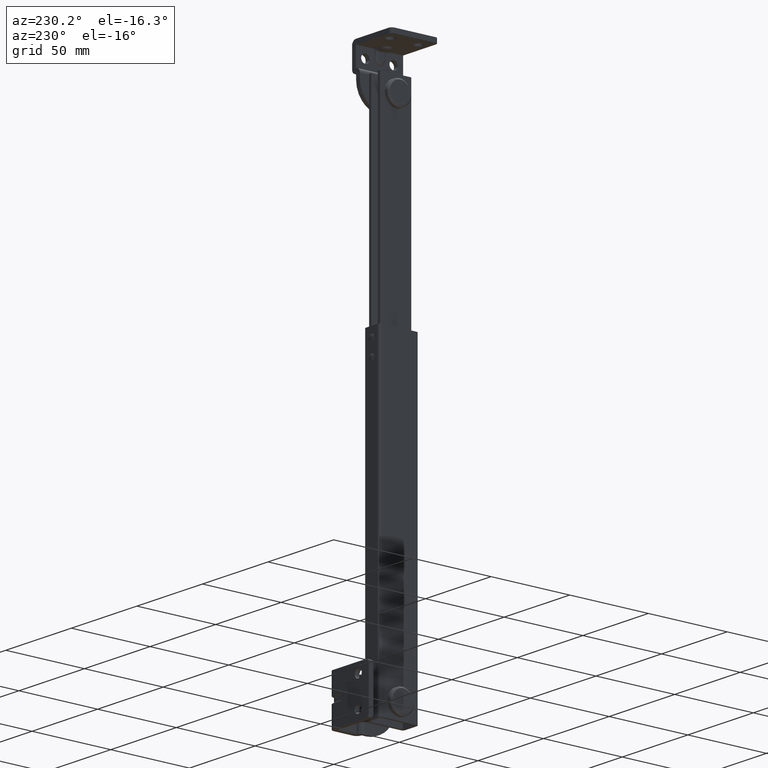
[diagram: clean part render]
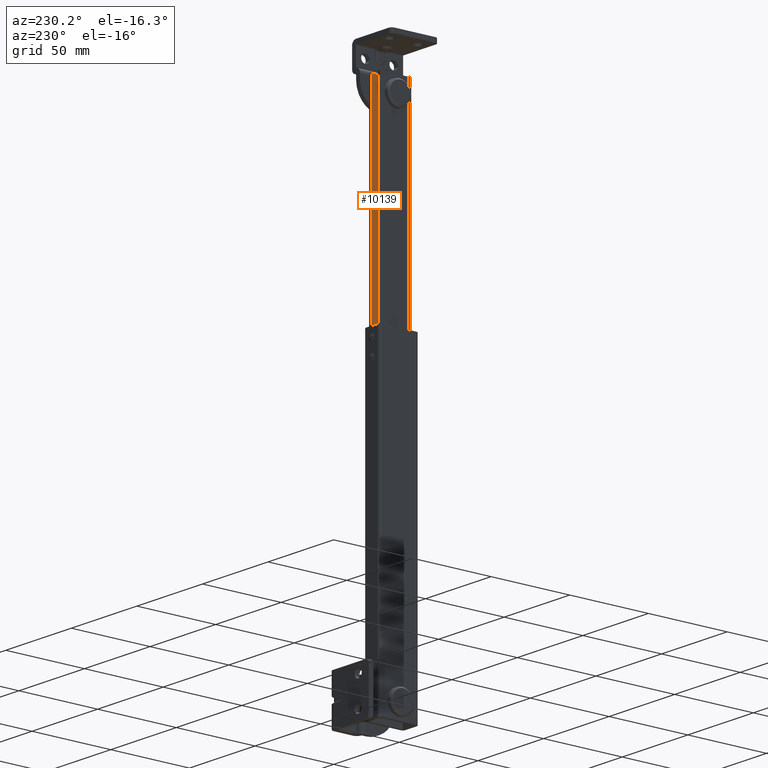
[diagram: same view with one face highlighted and labeled with its STEP entity id]
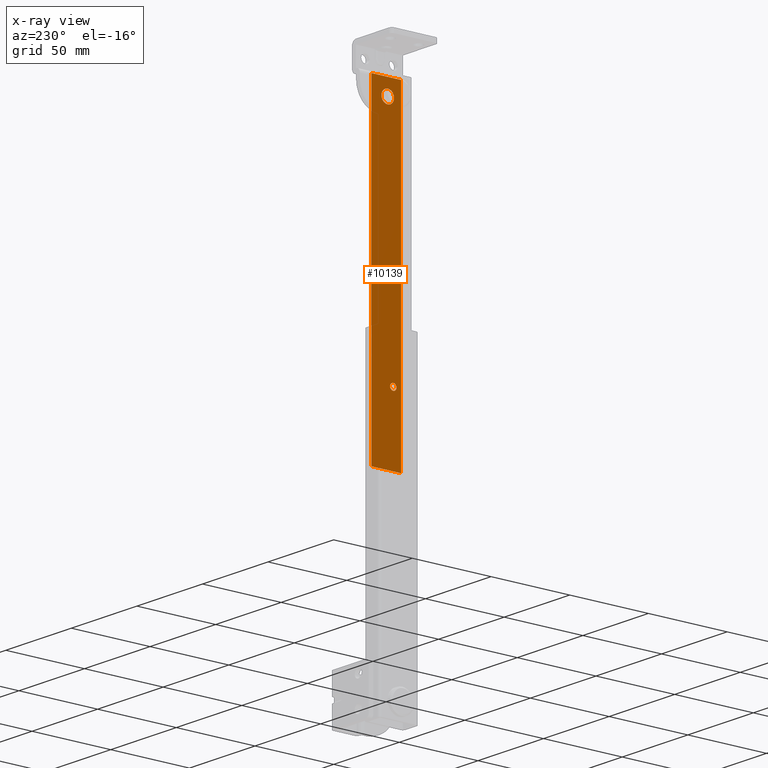
[diagram: x-ray of the same camera — body ghosted, the highlighted face saturated]
A machine part, auxiliary view. The second image highlights one B-rep face of the part: STEP entity #10139.
The next image is the same camera in x-ray: the body ghosted, the highlighted face saturated — about 0% of this face is hidden behind the body in this view.
In plain terms, the highlighted face is a freeform B-spline surface patch.
Its self-contained STEP definition (entity closure, byte-faithful):
#8770=CARTESIAN_POINT('',(8.799994000000000,-5.490452368084956,163.236068474418490));
#8771=VERTEX_POINT('',#8770);
#8772=CARTESIAN_POINT('',(8.799994000000000,-3.504433315964420,161.0));
#8773=VERTEX_POINT('',#8772);
#8774=CARTESIAN_POINT('',(8.799994000000000,-5.490452368084956,163.236068474418430));
#8775=CARTESIAN_POINT('',(8.799994000000000,-5.504433315964420,163.118448244462740));
#8776=CARTESIAN_POINT('',(8.799994000000000,-5.504433315964420,163.0));
#8777=CARTESIAN_POINT('',(8.799994000000000,-5.504433315964420,161.000000000000060));
#8778=CARTESIAN_POINT('',(8.799994000000000,-3.504433315964420,161.0));
#8786=(BOUNDED_CURVE()B_SPLINE_CURVE(2,(#8774,#8775,#8776,#8777,#8778),.UNSPECIFIED.,.F.,.U.)B_SPLINE_CURVE_WITH_KNOTS((3,2,3),(0.229562472646823,0.250000000000000,0.500000000000000),.UNSPECIFIED.)CURVE()GEOMETRIC_REPRESENTATION_ITEM()RATIONAL_B_SPLINE_CURVE((0.956026752484961,0.976055947315760,1.0,0.707106781186548,1.0))REPRESENTATION_ITEM(''));
#8787=EDGE_CURVE('',#8771,#8773,#8786,.T.);
#8828=CARTESIAN_POINT('',(8.799994000000002,-1.508163719403995,162.877902916298210));
#8829=VERTEX_POINT('',#8828);
#8835=CARTESIAN_POINT('',(8.799994000000000,-3.504433315964420,161.0));
#8836=CARTESIAN_POINT('',(8.799994000000002,-1.623021190900422,161.000000000000060));
#8837=CARTESIAN_POINT('',(8.799994000000002,-1.508163719403994,162.877902916298240));
#8845=(BOUNDED_CURVE()B_SPLINE_CURVE(2,(#8835,#8836,#8837),.UNSPECIFIED.,.F.,.U.)B_SPLINE_CURVE_WITH_KNOTS((3,3),(0.500000000000000,0.739332961441230),.UNSPECIFIED.)CURVE()GEOMETRIC_REPRESENTATION_ITEM()RATIONAL_B_SPLINE_CURVE((1.0,0.719603994221289,0.976072039957067))REPRESENTATION_ITEM(''));
#8846=EDGE_CURVE('',#8773,#8829,#8845,.T.);
#8869=CARTESIAN_POINT('',(8.799994000000000,-3.504433315964420,165.0));
#8870=VERTEX_POINT('',#8869);
#8871=CARTESIAN_POINT('',(8.799994000000000,-3.504433315964420,165.0));
#8872=CARTESIAN_POINT('',(8.799994000000002,-5.280782358670918,165.0));
#8873=CARTESIAN_POINT('',(8.799994000000000,-5.490452368084956,163.236068474418430));
#8881=(BOUNDED_CURVE()B_SPLINE_CURVE(2,(#8871,#8872,#8873),.UNSPECIFIED.,.F.,.U.)B_SPLINE_CURVE_WITH_KNOTS((3,3),(0.0,0.229562472646823),.UNSPECIFIED.)CURVE()GEOMETRIC_REPRESENTATION_ITEM()RATIONAL_B_SPLINE_CURVE((1.0,0.731050833870787,0.956026752484961))REPRESENTATION_ITEM(''));
#8882=EDGE_CURVE('',#8870,#8771,#8881,.T.);
#8884=CARTESIAN_POINT('',(8.799994000000002,-1.508163719403995,162.877902916298240));
#8885=CARTESIAN_POINT('',(8.799994000000002,-1.504433315964420,162.938894468757750));
#8886=CARTESIAN_POINT('',(8.799994000000000,-1.504433315964420,163.0));
#8887=CARTESIAN_POINT('',(8.799994000000000,-1.504433315964420,165.000000000000090));
#8888=CARTESIAN_POINT('',(8.799994000000000,-3.504433315964420,165.0));
#8896=(BOUNDED_CURVE()B_SPLINE_CURVE(2,(#8884,#8885,#8886,#8887,#8888),.UNSPECIFIED.,.F.,.U.)B_SPLINE_CURVE_WITH_KNOTS((3,2,3),(0.739332961441229,0.750000000000000,1.0),.UNSPECIFIED.)CURVE()GEOMETRIC_REPRESENTATION_ITEM()RATIONAL_B_SPLINE_CURVE((0.976072039957066,0.987502786965258,1.0,0.707106781186548,1.0))REPRESENTATION_ITEM(''));
#8897=EDGE_CURVE('',#8829,#8870,#8896,.T.);
#9142=CARTESIAN_POINT('',(8.799994000000002,-3.972038105131492,310.472136941345920));
#9143=VERTEX_POINT('',#9142);
#9144=CARTESIAN_POINT('',(8.799994000000000,0.0,306.0));
#9145=VERTEX_POINT('',#9144);
#9146=CARTESIAN_POINT('',(8.799994000000002,-3.972038105131492,310.472136941345920));
#9147=CARTESIAN_POINT('',(8.799994000000000,-4.0,310.236896481355190));
#9148=CARTESIAN_POINT('',(8.799994000000000,-4.0,310.0));
#9149=CARTESIAN_POINT('',(8.799994000000000,-4.000000000000000,306.000000000000060));
#9150=CARTESIAN_POINT('',(8.799994000000000,0.0,306.0));
#9158=(BOUNDED_CURVE()B_SPLINE_CURVE(2,(#9146,#9147,#9148,#9149,#9150),.UNSPECIFIED.,.F.,.U.)B_SPLINE_CURVE_WITH_KNOTS((3,2,3),(0.229562473284282,0.250000000000000,0.500000000000000),.UNSPECIFIED.)CURVE()GEOMETRIC_REPRESENTATION_ITEM()RATIONAL_B_SPLINE_CURVE((0.956026753734405,0.976055948062589,1.0,0.707106781186548,1.0))REPRESENTATION_ITEM(''));
#9159=EDGE_CURVE('',#9143,#9145,#9158,.T.);
#9200=CARTESIAN_POINT('',(8.799994000000000,3.992539193625170,309.755805840842070));
#9201=VERTEX_POINT('',#9200);
#9207=CARTESIAN_POINT('',(8.799994000000000,0.0,306.0));
#9208=CARTESIAN_POINT('',(8.799994000000000,3.762824265699311,305.999999999999940));
#9209=CARTESIAN_POINT('',(8.799994000000000,3.992539193625170,309.755805840842130));
#9217=(BOUNDED_CURVE()B_SPLINE_CURVE(2,(#9207,#9208,#9209),.UNSPECIFIED.,.F.,.U.)B_SPLINE_CURVE_WITH_KNOTS((3,3),(0.500000000000000,0.739332962153931),.UNSPECIFIED.)CURVE()GEOMETRIC_REPRESENTATION_ITEM()RATIONAL_B_SPLINE_CURVE((1.0,0.719603993386308,0.976072041484521))REPRESENTATION_ITEM(''));
#9218=EDGE_CURVE('',#9145,#9201,#9217,.T.);
#9241=CARTESIAN_POINT('',(8.799994000000000,0.0,314.0));
#9242=VERTEX_POINT('',#9241);
#9243=CARTESIAN_POINT('',(8.799994000000000,0.0,314.0));
#9244=CARTESIAN_POINT('',(8.799994000000000,-3.552698098907646,313.999999999999940));
#9245=CARTESIAN_POINT('',(8.799994000000002,-3.972038105131492,310.472136941345920));
#9253=(BOUNDED_CURVE()B_SPLINE_CURVE(2,(#9243,#9244,#9245),.UNSPECIFIED.,.F.,.U.)B_SPLINE_CURVE_WITH_KNOTS((3,3),(0.0,0.229562473284282),.UNSPECIFIED.)CURVE()GEOMETRIC_REPRESENTATION_ITEM()RATIONAL_B_SPLINE_CURVE((1.0,0.731050833123958,0.956026753734405))REPRESENTATION_ITEM(''));
#9254=EDGE_CURVE('',#9242,#9143,#9253,.T.);
#9256=CARTESIAN_POINT('',(8.799994000000000,3.992539193625170,309.755805840842070));
#9257=CARTESIAN_POINT('',(8.799994000000000,4.0,309.877788945784230));
#9258=CARTESIAN_POINT('',(8.799994000000000,4.0,310.0));
#9259=CARTESIAN_POINT('',(8.799994000000000,4.000000000000000,313.999999999999940));
#9260=CARTESIAN_POINT('',(8.799994000000000,0.0,314.0));
#9268=(BOUNDED_CURVE()B_SPLINE_CURVE(2,(#9256,#9257,#9258,#9259,#9260),.UNSPECIFIED.,.F.,.U.)B_SPLINE_CURVE_WITH_KNOTS((3,2,3),(0.739332962153930,0.750000000000000,1.0),.UNSPECIFIED.)CURVE()GEOMETRIC_REPRESENTATION_ITEM()RATIONAL_B_SPLINE_CURVE((0.976072041484518,0.987502787800238,1.0,0.707106781186548,1.0))REPRESENTATION_ITEM(''));
#9269=EDGE_CURVE('',#9201,#9242,#9268,.T.);
#9812=CARTESIAN_POINT('',(8.799994000000000,-8.400000000000130,320.0));
#9813=VERTEX_POINT('',#9812);
#9827=CARTESIAN_POINT('',(8.799994000000000,-8.400000000000109,120.0));
#9828=VERTEX_POINT('',#9827);
#9829=CARTESIAN_POINT('',(8.799994000000000,-8.400000000000130,320.0));
#9830=CARTESIAN_POINT('',(8.799994000000000,-8.400000000000109,120.0));
#9831=QUASI_UNIFORM_CURVE('',1,(#9829,#9830),.UNSPECIFIED.,.F.,.U.);
#9832=EDGE_CURVE('',#9813,#9828,#9831,.T.);
#9953=CARTESIAN_POINT('',(8.799994000000000,10.499999999999741,320.0));
#9954=VERTEX_POINT('',#9953);
#9955=CARTESIAN_POINT('',(8.799994000000000,10.499999999999799,120.0));
#9956=VERTEX_POINT('',#9955);
#9957=CARTESIAN_POINT('',(8.799994000000000,10.499999999999741,320.0));
#9958=CARTESIAN_POINT('',(8.799994000000000,10.499999999999799,120.0));
#9959=QUASI_UNIFORM_CURVE('',1,(#9957,#9958),.UNSPECIFIED.,.F.,.U.);
#9960=EDGE_CURVE('',#9954,#9956,#9959,.T.);
#10027=CARTESIAN_POINT('',(8.799994000000000,10.499999999999799,120.0));
#10028=CARTESIAN_POINT('',(8.799994000000000,-8.400000000000109,120.0));
#10029=QUASI_UNIFORM_CURVE('',1,(#10027,#10028),.UNSPECIFIED.,.F.,.U.);
#10030=EDGE_CURVE('',#9956,#9828,#10029,.T.);
#10089=CARTESIAN_POINT('',(8.799994000000000,-8.400000000000130,320.0));
#10090=CARTESIAN_POINT('',(8.799994000000000,10.499999999999741,320.0));
#10091=QUASI_UNIFORM_CURVE('',1,(#10089,#10090),.UNSPECIFIED.,.F.,.U.);
#10092=EDGE_CURVE('',#9813,#9954,#10091,.T.);
#10116=CARTESIAN_POINT('',(8.799994000000000,-9.344054608528905,110.010000387638800));
#10117=CARTESIAN_POINT('',(8.799994000000000,11.444055453424410,110.010000387638800));
#10118=CARTESIAN_POINT('',(8.799994000000000,-9.344054608528905,329.990004976779180));
#10119=CARTESIAN_POINT('',(8.799994000000000,11.444055453424410,329.990004976779180));
#10120=B_SPLINE_SURFACE_WITH_KNOTS('',1,1,((#10116,#10118),(#10117,#10119)),.UNSPECIFIED.,.F.,.F.,.U.,(2,2),(2,2),(0.0,20.788110061953319),(0.0,219.980004589140410),.UNSPECIFIED.);
#10121=ORIENTED_EDGE('',*,*,#10092,.T.);
#10122=ORIENTED_EDGE('',*,*,#9960,.T.);
#10123=ORIENTED_EDGE('',*,*,#10030,.T.);
#10124=ORIENTED_EDGE('',*,*,#9832,.F.);
#10125=EDGE_LOOP('',(#10121,#10122,#10123,#10124));
#10126=FACE_OUTER_BOUND('',#10125,.T.);
#10127=ORIENTED_EDGE('',*,*,#9218,.T.);
#10128=ORIENTED_EDGE('',*,*,#9269,.T.);
#10129=ORIENTED_EDGE('',*,*,#9254,.T.);
#10130=ORIENTED_EDGE('',*,*,#9159,.T.);
#10131=EDGE_LOOP('',(#10127,#10128,#10129,#10130));
#10132=FACE_BOUND('',#10131,.T.);
#10133=ORIENTED_EDGE('',*,*,#8846,.T.);
#10134=ORIENTED_EDGE('',*,*,#8897,.T.);
#10135=ORIENTED_EDGE('',*,*,#8882,.T.);
#10136=ORIENTED_EDGE('',*,*,#8787,.T.);
#10137=EDGE_LOOP('',(#10133,#10134,#10135,#10136));
#10138=FACE_BOUND('',#10137,.T.);
#10139=ADVANCED_FACE('',(#10126,#10132,#10138),#10120,.F.);